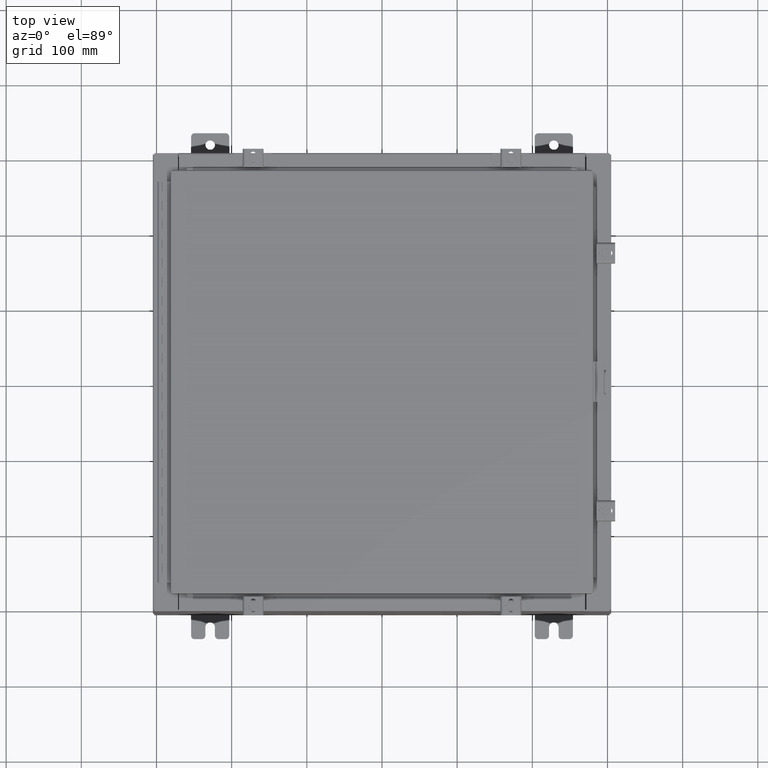
[diagram: clean part render]
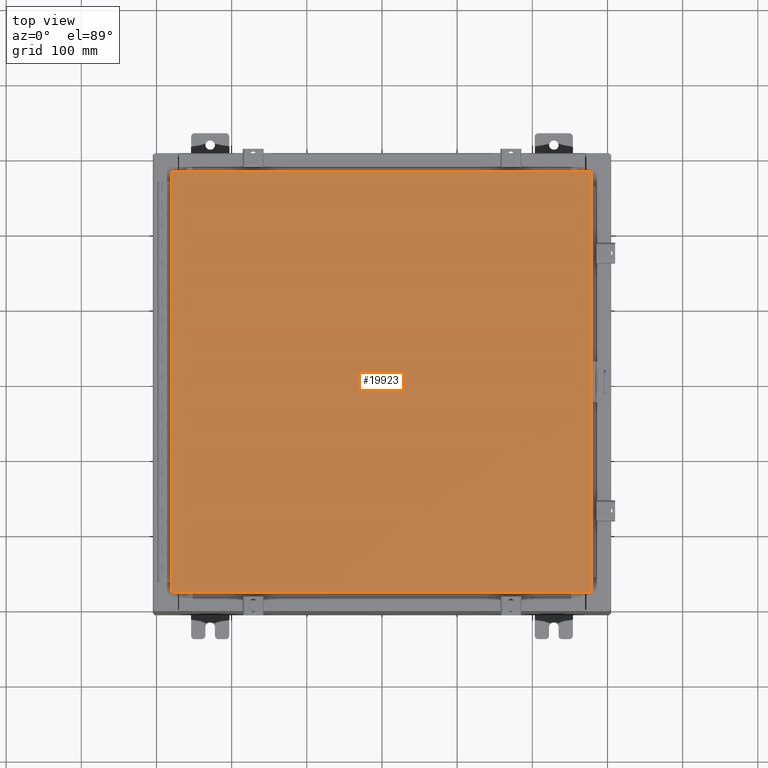
[diagram: same view with one face highlighted and labeled with its STEP entity id]
A machine part, top view. The second image highlights one B-rep face of the part: STEP entity #19923.
In plain terms, the highlighted planar face has unit normal (0, 0, -1).
Its self-contained STEP definition (entity closure, byte-faithful):
#168 = EDGE_CURVE ( 'NONE', #25662, #22957, #22971, .T. ) ;
#534 = FACE_OUTER_BOUND ( 'NONE', #32070, .T. ) ;
#2099 = LINE ( 'NONE', #27261, #27901 ) ;
#4730 = CARTESIAN_POINT ( 'NONE',  ( 10.99029999999999800, 11.00629999999999600, -2.048885995248197400E-016 ) ) ;
#5864 = CARTESIAN_POINT ( 'NONE',  ( -10.99030000000000500, 11.00629999999999600, -1.348849946871729900E-015 ) ) ;
#6818 = EDGE_CURVE ( 'NONE', #22957, #17474, #2099, .T. ) ;
#7628 = DIRECTION ( 'NONE',  ( 0.0000000000000000000, 0.0000000000000000000, -1.000000000000000000 ) ) ;
#9706 = VECTOR ( 'NONE', #22270, 39.37007874015748100 ) ;
#11027 = ORIENTED_EDGE ( 'NONE', *, *, #24020, .T. ) ;
#11557 = EDGE_CURVE ( 'NONE', #13323, #25662, #26061, .T. ) ;
#12230 = DIRECTION ( 'NONE',  ( -1.000000000000000000, -0.0000000000000000000, -0.0000000000000000000 ) ) ;
#13323 = VERTEX_POINT ( 'NONE', #4730 ) ;
#13545 = VECTOR ( 'NONE', #12230, 39.37007874015748100 ) ;
#13928 = AXIS2_PLACEMENT_3D ( 'NONE', #15052, #7628, #25125 ) ;
#15052 = CARTESIAN_POINT ( 'NONE',  ( 0.0000000000000000000, 0.0000000000000000000, 0.0000000000000000000 ) ) ;
#15281 = ORIENTED_EDGE ( 'NONE', *, *, #6818, .T. ) ;
#16384 = CARTESIAN_POINT ( 'NONE',  ( 10.99029999999999600, -11.00630000000000100, -2.048885995248197400E-016 ) ) ;
#17151 = LINE ( 'NONE', #23550, #29712 ) ;
#17474 = VERTEX_POINT ( 'NONE', #16384 ) ;
#19923 = ADVANCED_FACE ( 'NONE', ( #534 ), #22576, .F. ) ;
#20586 = ORIENTED_EDGE ( 'NONE', *, *, #11557, .T. ) ;
#21004 = DIRECTION ( 'NONE',  ( 0.0000000000000000000, 1.000000000000000000, 0.0000000000000000000 ) ) ;
#21017 = ORIENTED_EDGE ( 'NONE', *, *, #168, .T. ) ;
#22270 = DIRECTION ( 'NONE',  ( 0.0000000000000000000, -1.000000000000000000, 0.0000000000000000000 ) ) ;
#22576 = PLANE ( 'NONE',  #13928 ) ;
#22957 = VERTEX_POINT ( 'NONE', #31433 ) ;
#22971 = LINE ( 'NONE', #23063, #9706 ) ;
#23063 = CARTESIAN_POINT ( 'NONE',  ( -10.99030000000000500, 11.00629999999999600, -1.348849946871729900E-015 ) ) ;
#23550 = CARTESIAN_POINT ( 'NONE',  ( 10.99029999999999600, -11.00630000000000100, -2.048885995248197400E-016 ) ) ;
#24020 = EDGE_CURVE ( 'NONE', #17474, #13323, #17151, .T. ) ;
#24705 = CARTESIAN_POINT ( 'NONE',  ( 10.99029999999999800, 11.00629999999999600, -2.048885995248197400E-016 ) ) ;
#25125 = DIRECTION ( 'NONE',  ( -1.000000000000000000, 0.0000000000000000000, -0.0000000000000000000 ) ) ;
#25662 = VERTEX_POINT ( 'NONE', #5864 ) ;
#26061 = LINE ( 'NONE', #24705, #13545 ) ;
#27261 = CARTESIAN_POINT ( 'NONE',  ( -10.99030000000000000, -11.00630000000000100, 8.878505979408856000E-016 ) ) ;
#27474 = DIRECTION ( 'NONE',  ( 1.000000000000000000, -0.0000000000000000000, -0.0000000000000000000 ) ) ;
#27901 = VECTOR ( 'NONE', #27474, 39.37007874015748100 ) ;
#29712 = VECTOR ( 'NONE', #21004, 39.37007874015748100 ) ;
#31433 = CARTESIAN_POINT ( 'NONE',  ( -10.99030000000000000, -11.00630000000000100, 8.878505979408856000E-016 ) ) ;
#32070 = EDGE_LOOP ( 'NONE', ( #15281, #11027, #20586, #21017 ) ) ;